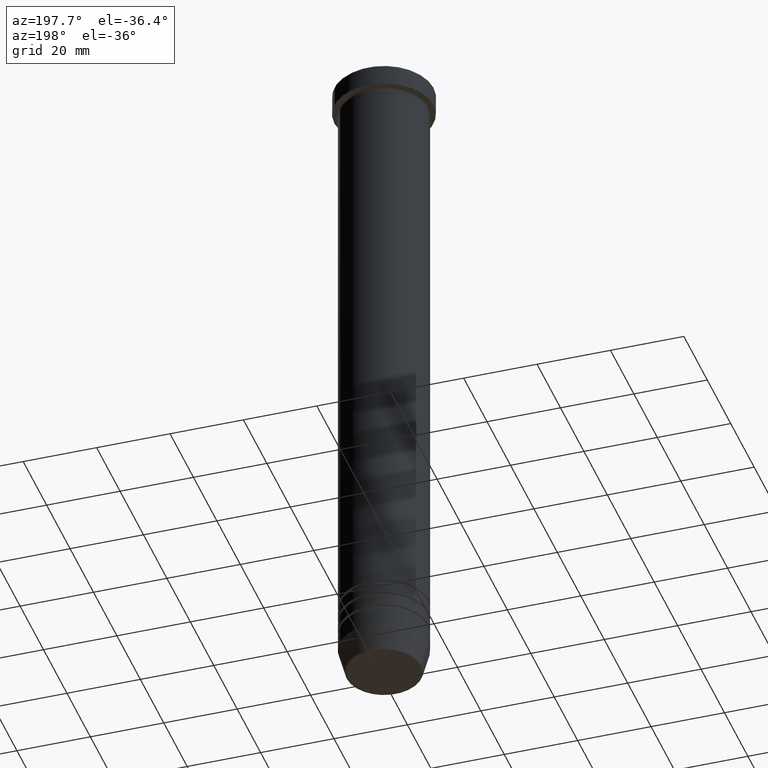
[diagram: clean part render]
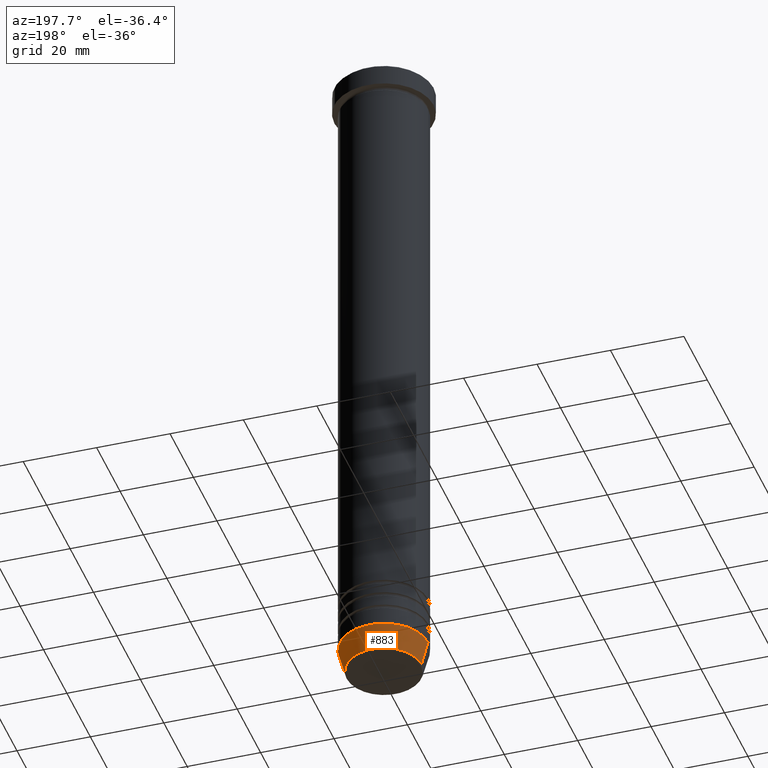
[diagram: same view with one face highlighted and labeled with its STEP entity id]
A machine part, auxiliary view. The second image highlights one B-rep face of the part: STEP entity #883.
In plain terms, the highlighted conical surface has half-angle 15 deg.
Its self-contained STEP definition (entity closure, byte-faithful):
#31 = CARTESIAN_POINT ( 'NONE',  ( 0.000000000000000000, 0.000000000000000000, -179.0000000000000000 ) ) ;
#110 = CARTESIAN_POINT ( 'NONE',  ( 10.22365507213718949, 0.000000000000000000, -185.6294095225512422 ) ) ;
#161 = VERTEX_POINT ( 'NONE', #110 ) ;
#191 = CARTESIAN_POINT ( 'NONE',  ( 0.000000000000000000, 0.000000000000000000, -185.6294095225512422 ) ) ;
#214 = CARTESIAN_POINT ( 'NONE',  ( 12.00000000000000178, 0.000000000000000000, -179.0000000000000000 ) ) ;
#262 = LINE ( 'NONE', #348, #535 ) ;
#275 = ORIENTED_EDGE ( 'NONE', *, *, #949, .T. ) ;
#283 = DIRECTION ( 'NONE',  ( -1.000000000000000000, 0.000000000000000000, 0.000000000000000000 ) ) ;
#319 = ORIENTED_EDGE ( 'NONE', *, *, #850, .F. ) ;
#320 = CIRCLE ( 'NONE', #338, 12.00000000000000178 ) ;
#330 = DIRECTION ( 'NONE',  ( 0.2588190451025214611, 0.000000000000000000, 0.9659258262890679791 ) ) ;
#338 = AXIS2_PLACEMENT_3D ( 'NONE', #31, #653, #468 ) ;
#348 = CARTESIAN_POINT ( 'NONE',  ( -10.12435565298213547, 1.239875974385398349E-15, -186.0000000000000000 ) ) ;
#369 = CIRCLE ( 'NONE', #523, 10.22365507213718949 ) ;
#389 = ORIENTED_EDGE ( 'NONE', *, *, #706, .F. ) ;
#425 = CONICAL_SURFACE ( 'NONE', #1121, 10.12435565298213547, 0.2617993877991502405 ) ;
#468 = DIRECTION ( 'NONE',  ( 1.000000000000000000, 0.000000000000000000, 0.000000000000000000 ) ) ;
#491 = CARTESIAN_POINT ( 'NONE',  ( -10.22365507213718949, 1.360806402472382941E-15, -185.6294095225512422 ) ) ;
#492 = DIRECTION ( 'NONE',  ( 1.000000000000000000, 0.000000000000000000, 0.000000000000000000 ) ) ;
#523 = AXIS2_PLACEMENT_3D ( 'NONE', #191, #811, #283 ) ;
#535 = VECTOR ( 'NONE', #1066, 1000.000000000000114 ) ;
#601 = FACE_OUTER_BOUND ( 'NONE', #1035, .T. ) ;
#614 = CARTESIAN_POINT ( 'NONE',  ( -12.00000000000000178, 1.469576158976824144E-15, -179.0000000000000000 ) ) ;
#618 = EDGE_CURVE ( 'NONE', #1055, #1085, #262, .T. ) ;
#653 = DIRECTION ( 'NONE',  ( -0.000000000000000000, -0.000000000000000000, 1.000000000000000000 ) ) ;
#683 = DIRECTION ( 'NONE',  ( -0.000000000000000000, -0.000000000000000000, 1.000000000000000000 ) ) ;
#685 = VERTEX_POINT ( 'NONE', #214 ) ;
#690 = CARTESIAN_POINT ( 'NONE',  ( 10.12435565298213547, 0.000000000000000000, -186.0000000000000000 ) ) ;
#706 = EDGE_CURVE ( 'NONE', #685, #1085, #320, .T. ) ;
#767 = CARTESIAN_POINT ( 'NONE',  ( 0.000000000000000000, 0.000000000000000000, -186.0000000000000000 ) ) ;
#776 = ORIENTED_EDGE ( 'NONE', *, *, #618, .T. ) ;
#803 = VECTOR ( 'NONE', #330, 1000.000000000000114 ) ;
#811 = DIRECTION ( 'NONE',  ( -0.000000000000000000, -0.000000000000000000, 1.000000000000000000 ) ) ;
#850 = EDGE_CURVE ( 'NONE', #161, #685, #1049, .T. ) ;
#883 = ADVANCED_FACE ( 'NONE', ( #601 ), #425, .T. ) ;
#949 = EDGE_CURVE ( 'NONE', #161, #1055, #369, .T. ) ;
#1035 = EDGE_LOOP ( 'NONE', ( #275, #776, #389, #319 ) ) ;
#1049 = LINE ( 'NONE', #690, #803 ) ;
#1055 = VERTEX_POINT ( 'NONE', #491 ) ;
#1066 = DIRECTION ( 'NONE',  ( -0.2588190451025214611, 3.169619151431774186E-17, 0.9659258262890679791 ) ) ;
#1085 = VERTEX_POINT ( 'NONE', #614 ) ;
#1121 = AXIS2_PLACEMENT_3D ( 'NONE', #767, #683, #492 ) ;